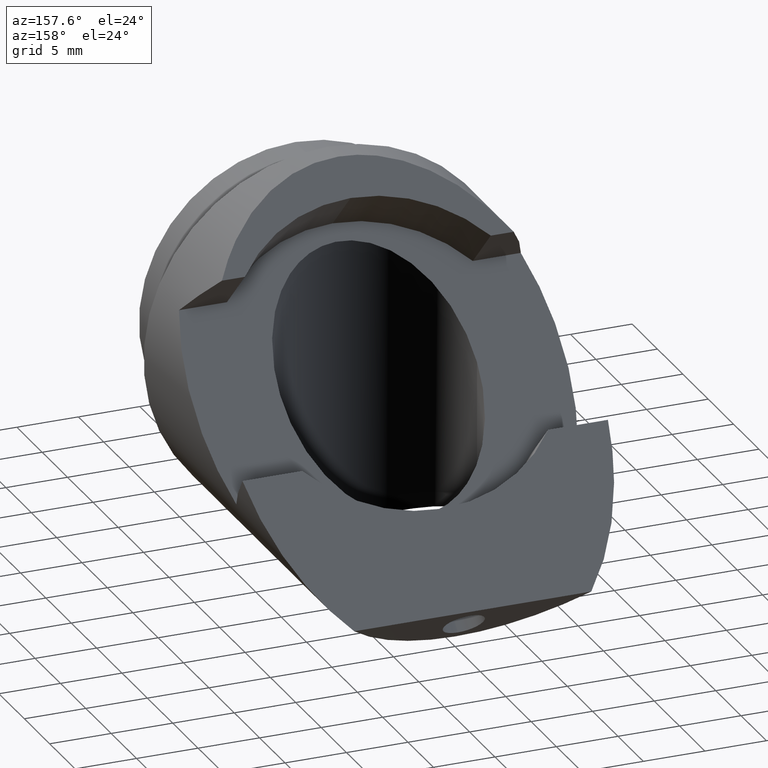
[diagram: clean part render]
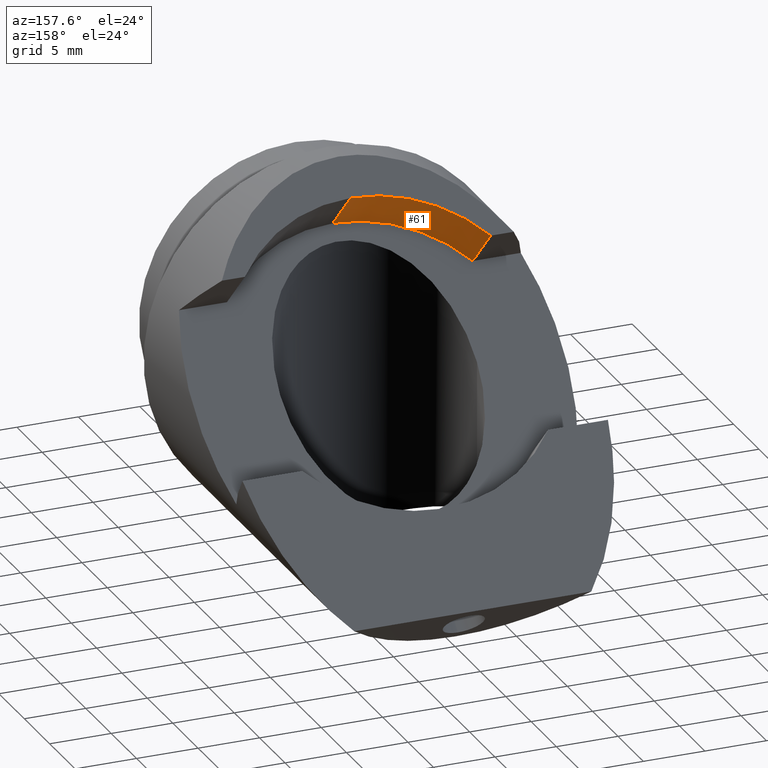
[diagram: same view with one face highlighted and labeled with its STEP entity id]
A machine part, auxiliary view. The second image highlights one B-rep face of the part: STEP entity #61.
In plain terms, the highlighted cylindrical surface (partial cylindrical patch) has radius 12.8 mm, axis along (-0, 0.7071, 0.7071).
Its self-contained STEP definition (entity closure, byte-faithful):
#15 = FACE_OUTER_BOUND ( 'NONE', #233, .T. ) ;
#28 = DIRECTION ( 'NONE',  ( 0.0000000000000000000, -0.7071067811865473500, 0.7071067811865475700 ) ) ;
#48 = CARTESIAN_POINT ( 'NONE',  ( 0.0000000000000000000, 18.60716650226751100, 8.678234314133032300 ) ) ;
#52 = CARTESIAN_POINT ( 'NONE',  ( 0.0000000000000000000, 13.46446609406720900, 3.535533905932731100 ) ) ;
#53 = ORIENTED_EDGE ( 'NONE', *, *, #400, .F. ) ;
#61 = ADVANCED_FACE ( 'NONE', ( #15 ), #95, .F. ) ;
#95 = CYLINDRICAL_SURFACE ( 'NONE', #278, 12.79999999999999900 ) ;
#99 = VERTEX_POINT ( 'NONE', #116 ) ;
#113 = CARTESIAN_POINT ( 'NONE',  ( 0.0000000000000000000, 0.8779653889466644300, 9.050966799187804700 ) ) ;
#114 = VERTEX_POINT ( 'NONE', #113 ) ;
#116 = CARTESIAN_POINT ( 'NONE',  ( 0.0000000000000000000, 4.413499294879401600, 12.58650070512053900 ) ) ;
#198 = DIRECTION ( 'NONE',  ( -0.0000000000000000000, 0.7071067811865475700, 0.7071067811865474600 ) ) ;
#226 = EDGE_CURVE ( 'NONE', #114, #99, #664, .T. ) ;
#233 = EDGE_LOOP ( 'NONE', ( #305, #53, #944, #896 ) ) ;
#253 = DIRECTION ( 'NONE',  ( -0.0000000000000000000, 0.7071067811865475700, 0.7071067811865474600 ) ) ;
#258 = CIRCLE ( 'NONE', #645, 12.80000000000000100 ) ;
#278 = AXIS2_PLACEMENT_3D ( 'NONE', #48, #198, #755 ) ;
#305 = ORIENTED_EDGE ( 'NONE', *, *, #226, .F. ) ;
#310 = DIRECTION ( 'NONE',  ( 0.0000000000000000000, -0.7071067811865475700, -0.7071067811865474600 ) ) ;
#378 = CARTESIAN_POINT ( 'NONE',  ( 0.0000000000000000000, 9.556199703079702300, 17.72920111332084000 ) ) ;
#400 = EDGE_CURVE ( 'NONE', #579, #114, #926, .T. ) ;
#505 = CARTESIAN_POINT ( 'NONE',  ( -9.991996797437179700, 4.272077938641866800, 5.656854249492600900 ) ) ;
#518 = VECTOR ( 'NONE', #310, 1000.000000000000000 ) ;
#551 = EDGE_CURVE ( 'NONE', #770, #99, #258, .T. ) ;
#579 = VERTEX_POINT ( 'NONE', #505 ) ;
#594 = LINE ( 'NONE', #791, #518 ) ;
#607 = DIRECTION ( 'NONE',  ( -0.0000000000000000000, 0.7071067811865475700, 0.7071067811865474600 ) ) ;
#643 = VECTOR ( 'NONE', #853, 1000.000000000000000 ) ;
#645 = AXIS2_PLACEMENT_3D ( 'NONE', #52, #607, #670 ) ;
#664 = LINE ( 'NONE', #378, #643 ) ;
#670 = DIRECTION ( 'NONE',  ( 0.0000000000000000000, -0.7071067811865474600, 0.7071067811865475700 ) ) ;
#689 = EDGE_CURVE ( 'NONE', #770, #579, #594, .T. ) ;
#739 = AXIS2_PLACEMENT_3D ( 'NONE', #810, #253, #28 ) ;
#755 = DIRECTION ( 'NONE',  ( 0.0000000000000000000, -0.7071067811865475700, 0.7071067811865474600 ) ) ;
#770 = VERTEX_POINT ( 'NONE', #1002 ) ;
#791 = CARTESIAN_POINT ( 'NONE',  ( -9.991996797437233000, 12.95031225277498300, 14.33508856362562200 ) ) ;
#810 = CARTESIAN_POINT ( 'NONE',  ( 0.0000000000000000000, 9.928932188134471200, -5.204170427930421300E-015 ) ) ;
#853 = DIRECTION ( 'NONE',  ( -0.0000000000000000000, 0.7071067811865475700, 0.7071067811865474600 ) ) ;
#896 = ORIENTED_EDGE ( 'NONE', *, *, #551, .T. ) ;
#926 = CIRCLE ( 'NONE', #739, 12.79999999999999700 ) ;
#944 = ORIENTED_EDGE ( 'NONE', *, *, #689, .F. ) ;
#1002 = CARTESIAN_POINT ( 'NONE',  ( -9.991996797437233000, 7.807611844574652500, 9.192388155425289800 ) ) ;